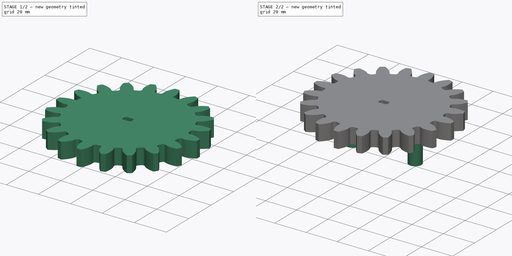
[diagram: build sequence overview — one tinted view per stage of 2, left to right]
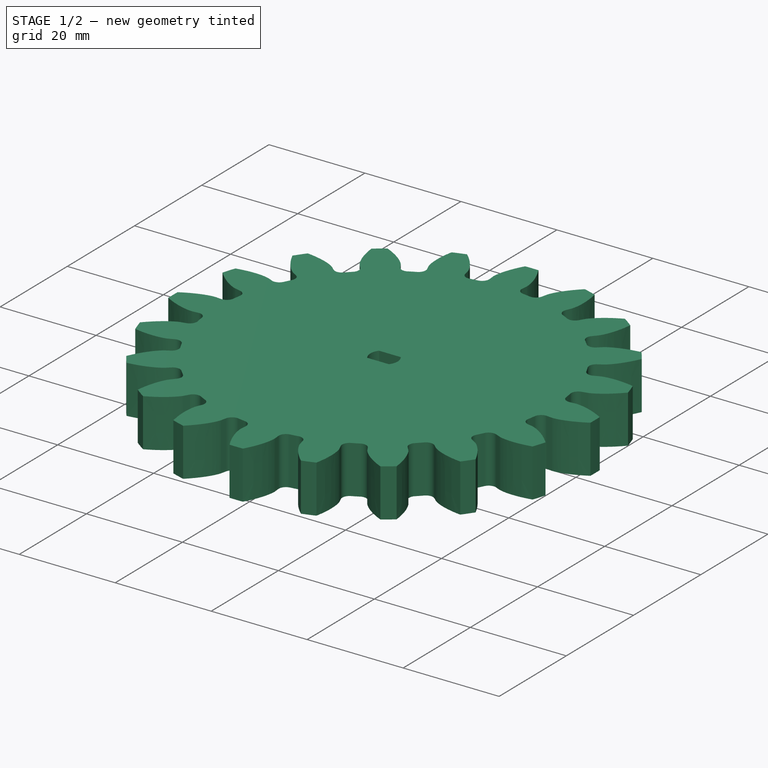
[diagram: stage 1 of 2 — iso view after this stage's code; geometry added in this stage tinted green]
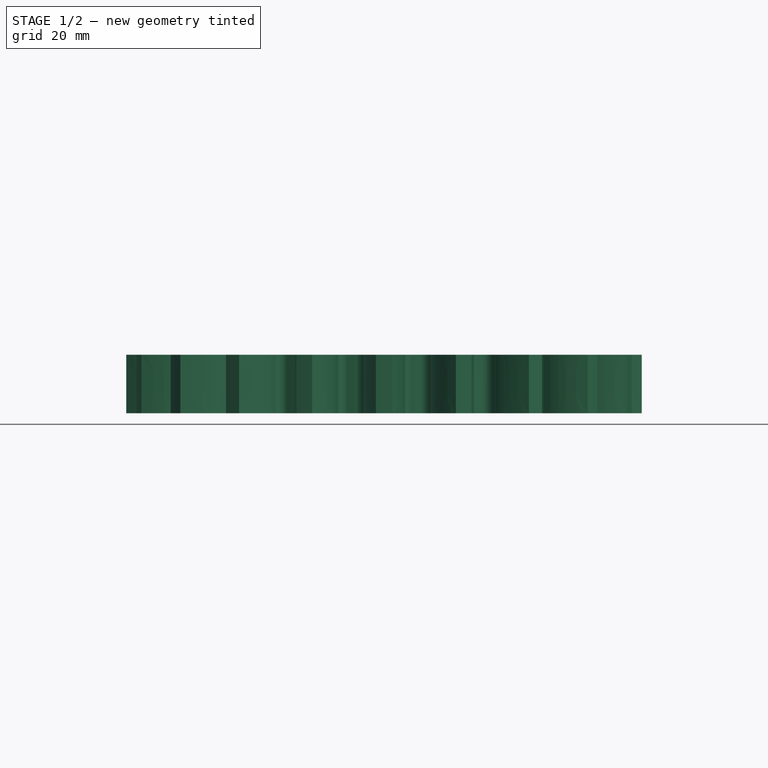
[diagram: stage 1 of 2 — front view after this stage's code; geometry added in this stage tinted green]
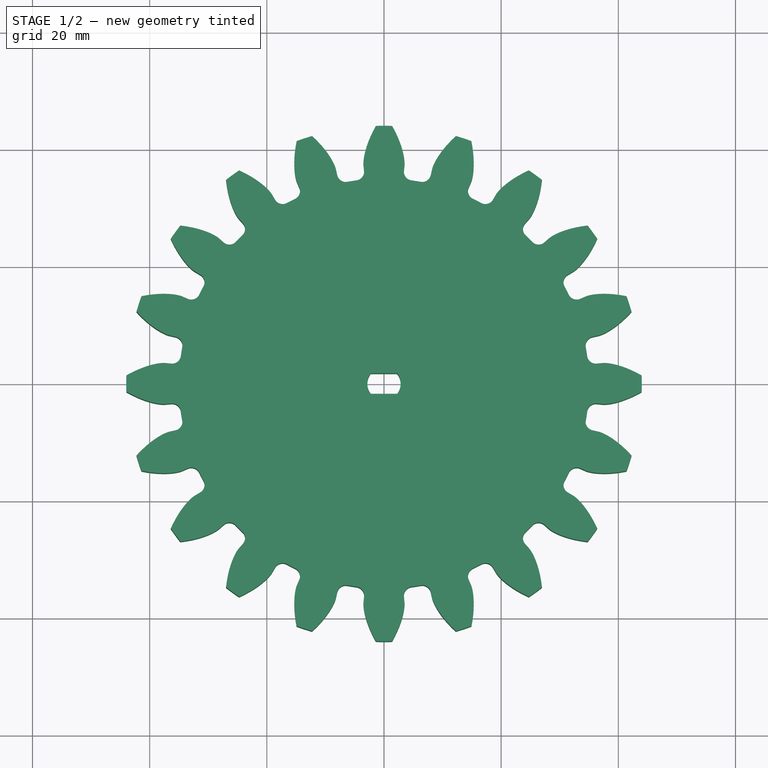
[diagram: stage 1 of 2 — top view after this stage's code; geometry added in this stage tinted green]
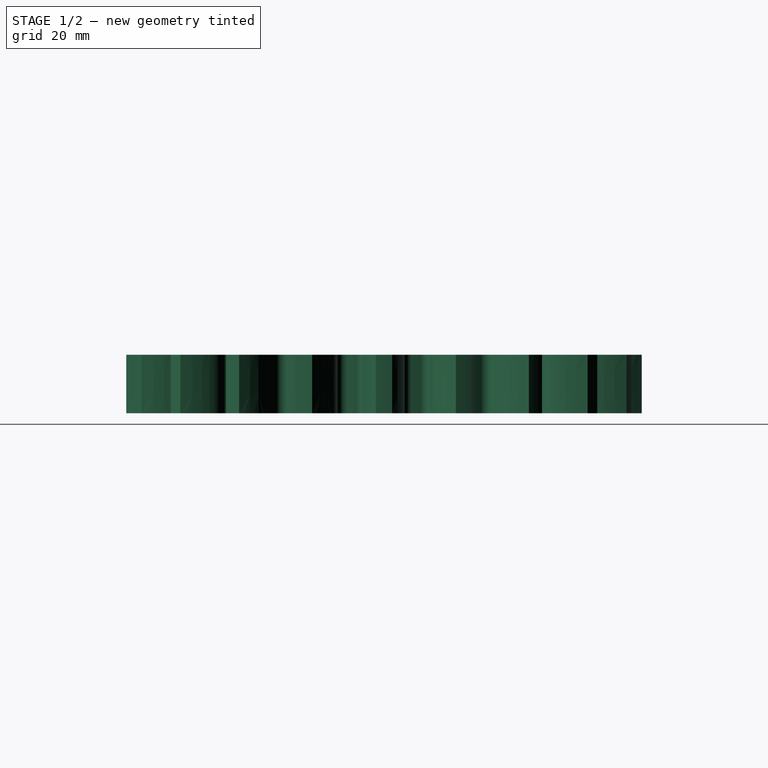
[diagram: stage 1 of 2 — right view after this stage's code; geometry added in this stage tinted green]
FCSTD DOCUMENT  (FreeCAD 0.19R24267 +148 (Git))
Label: Engranaje_1
License: All rights reserved
LicenseURL: http://en.wikipedia.org/wiki/All_rights_reserved
objects: Sketcher::SketchObject×4, PartDesign::Pad×3, Part::Part2DObjectPython×1, PartDesign::Pocket×1, PartDesign::Body×1
note: 14 computed .brp shape members not serialized (recipe doc carries the construction recipe); baked Part::Feature solids carry a one-line shape summary decoded from their .brp

FEATURE [Sketcher::SketchObject] Sketch001  label="Orificio"
  FullyConstrained = true
  MapMode = 5
  Support = -> [XY_Plane]
  sketch-geometry (10):
    g0: LineSegment StartX=-2.25 StartY=1.75 StartZ=0 EndX=2.25 EndY=1.75 EndZ=0
    g1: LineSegment StartX=-2.25 StartY=-1.75 StartZ=0 EndX=2.25 EndY=-1.75 EndZ=0
    g2: GeomPoint X=0 Y=1.75 Z=0
    g3: GeomPoint X=0 Y=-1.75 Z=0
    g4: LineSegment StartX=0 StartY=1.75 StartZ=0 EndX=0 EndY=-1.75 EndZ=0
    g5: GeomPoint X=0 Y=1.75 Z=0
    g6: ArcOfCircle CenterX=0 CenterY=0 CenterZ=0 NormalX=0 NormalY=0 NormalZ=1 AngleXU=0 Radius=2.85044 StartAngle=2.48055 EndAngle=3.80264
    g7: ArcOfCircle CenterX=0 CenterY=0 CenterZ=0 NormalX=0 NormalY=0 NormalZ=1 AngleXU=0 Radius=2.85044 StartAngle=5.62214 EndAngle=6.94423
    g8: GeomPoint X=-2.85044 Y=0 Z=0
    g9: GeomPoint X=-2.85044 Y=0 Z=0
  constraints (26):
    c: Distance(g1,g0) = 3.5
    c: Symmetric(g0,g1,g-1)
    c: Equal(g1,g0)
    c: Symmetric(g0,g0,g-2)
    c: PointOnObject(g2,g0)
    c: Distance(g2,g0) = 2.25
    c: Distance(g2,g0) = 2.25
    c: PointOnObject(g3,g1)
    c: Distance(g3,g1) = 2.25
    c: Coincident(g4,g2)
    c: Coincident(g4,g3)
    c: Vertical(g4)
    c: Distance(g4) = 3.5
    c: Distance(g0) = 4.5
    c: PointOnObject(g5,g-2)
    c: Coincident(g2,g5)
    c: Coincident(g6,g-1)
    c: Coincident(g6,g0)
    c: Coincident(g6,g1)
    c: Coincident(g7,g6)
    c: Coincident(g7,g0)
    c: Coincident(g7,g1)
    c: PointOnObject(g8,g-1)
    c: PointOnObject(g9,g6)
    c: Coincident(g8,g9)
    c: Distance(g8,g6) = 2.85044
FEATURE [Part::Part2DObjectPython] InvoluteGear  # Draft 2D object (typed FeaturePython)
  ExternalGear = true
  HighPrecision = true
  Modules = 4
  NumberOfTeeth = 20
  PressureAngle = 20
FEATURE [Sketcher::SketchObject] Sketch  label="Diametro"
  ExternalGeometry = -> [InvoluteGear]
  FullyConstrained = true
  MapMode = 5
  Support = -> [XY_Plane]
  sketch-geometry (3):
    g0: GeomPoint X=0 Y=44.0044 Z=0
    g1: GeomPoint X=0 Y=44.0044 Z=0
    g2: GeomPoint X=0 Y=-44.0044 Z=0
  constraints (6):
    c: PointOnObject(g0,g-3)
    c: PointOnObject(g1,g-2)
    c: Coincident(g0,g1)
    c: PointOnObject(g2,g-4)
    c: PointOnObject(g2,g-2)
    c: Distance(g0,g2) = 88.0088
FEATURE [Sketcher::SketchObject] Sketch002  label="Gancho_izquierdo"
  FullyConstrained = true
  MapMode = 5
  Support = -> [XY_Plane]
  sketch-geometry (2):
    g0: GeomPoint X=-20 Y=0 Z=0
    g1: Circle CenterX=-20 CenterY=0 CenterZ=0 NormalX=0 NormalY=0 NormalZ=1 AngleXU=0 Radius=4
  constraints (4):
    c: PointOnObject(g0,g-1)
    c: Distance(g-1,g0) = 20
    c: Coincident(g1,g0)
    c: Radius(g1) = 4
FEATURE [Sketcher::SketchObject] Sketch003  label="Gancho_derecho"
  FullyConstrained = true
  MapMode = 5
  Support = -> [XY_Plane]
  sketch-geometry (2):
    g0: GeomPoint X=20 Y=0 Z=0
    g1: Circle CenterX=20 CenterY=0 CenterZ=0 NormalX=0 NormalY=0 NormalZ=1 AngleXU=0 Radius=4
  constraints (4):
    c: PointOnObject(g0,g-1)
    c: Distance(g-1,g0) = 20
    c: Coincident(g1,g0)
    c: Radius(g1) = 4
FEATURE [PartDesign::Pad] Pad
  Direction = (1,1,1)
  Length = 10
  Length2 = 100
  Profile = -> InvoluteGear
  Type = 0
FEATURE [PartDesign::Pocket] Pocket  label="Gancho_izquierdo002"
  BaseFeature = -> Pad
  Length = 10
  Length2 = 100
  Profile = -> Sketch001
  Reversed = true
  Type = 0
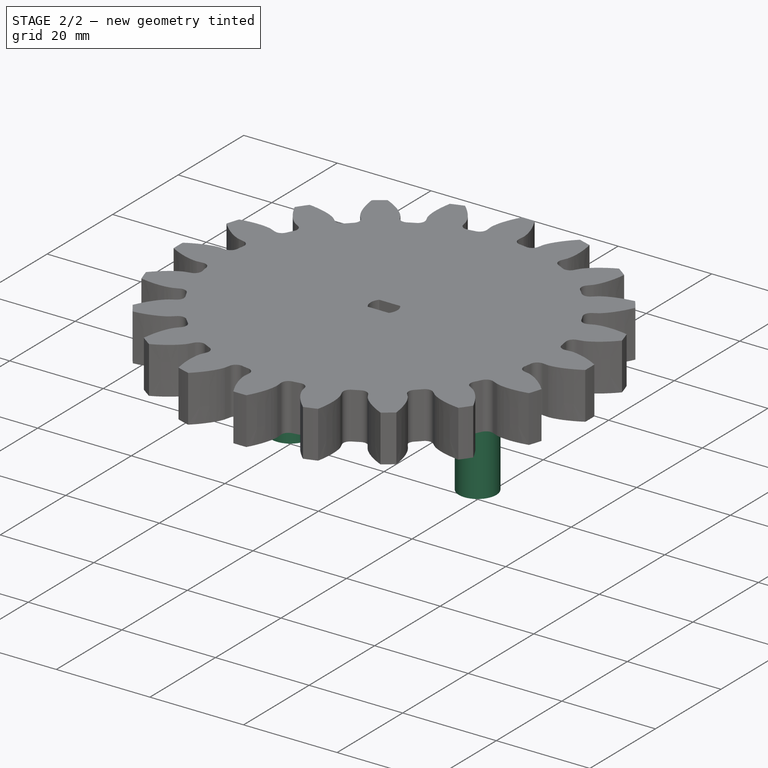
[diagram: stage 2 of 2 — iso view after this stage's code; geometry added in this stage tinted green]
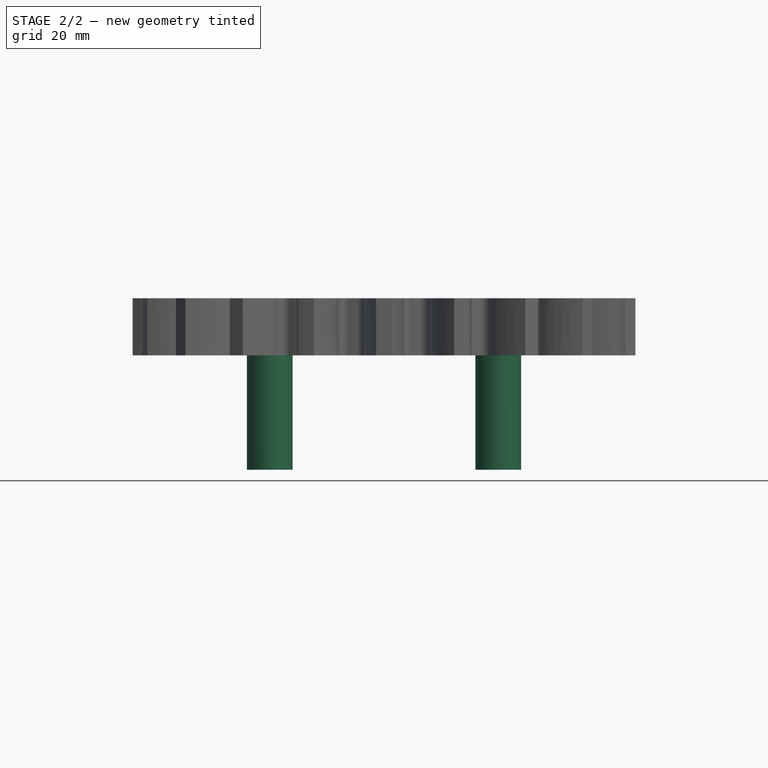
[diagram: stage 2 of 2 — front view after this stage's code; geometry added in this stage tinted green]
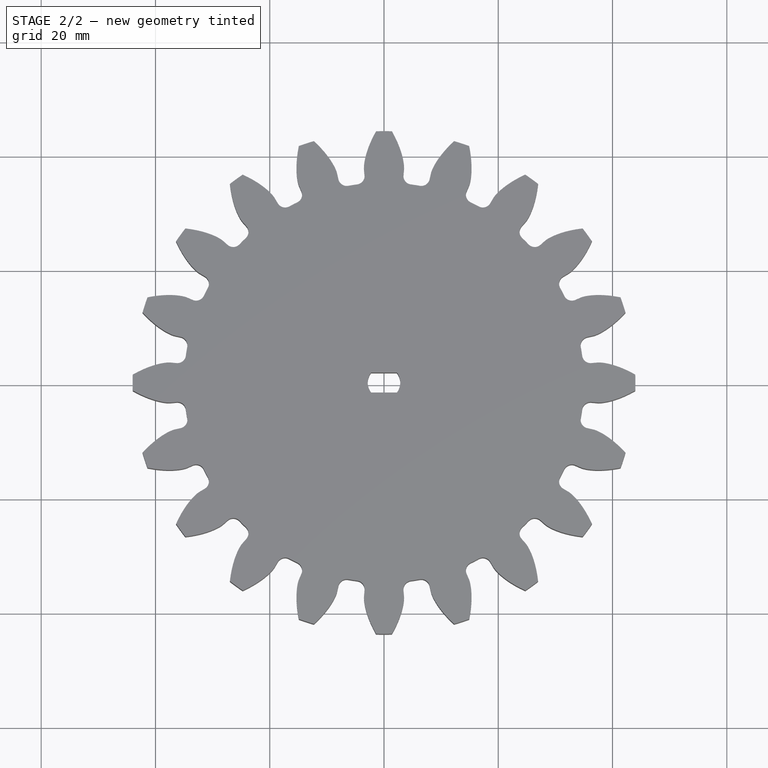
[diagram: stage 2 of 2 — top view after this stage's code; geometry added in this stage tinted green]
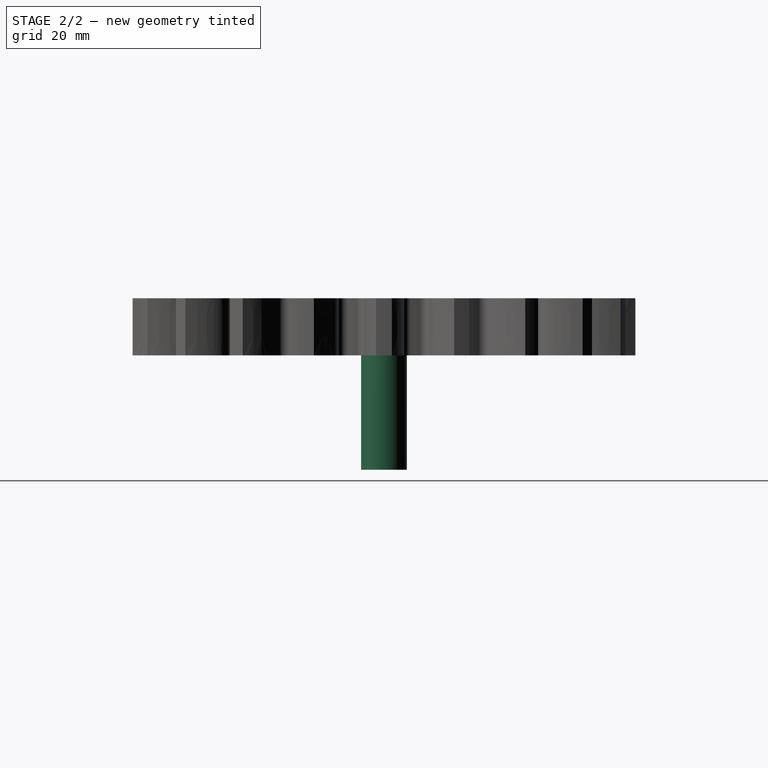
[diagram: stage 2 of 2 — right view after this stage's code; geometry added in this stage tinted green]
FEATURE [PartDesign::Pad] Pad001  label="Gancho_izquierdo001"
  BaseFeature = -> Pocket
  Direction = (1,1,1)
  Length = 20
  Length2 = 100
  Profile = -> Sketch002
  Reversed = true
  Type = 0
FEATURE [PartDesign::Pad] Pad002  label="Gancho_derecho001"
  BaseFeature = -> Pad001
  Direction = (1,1,1)
  Length = 20
  Length2 = 100
  Profile = -> Sketch003
  Reversed = true
  Type = 0
FEATURE [PartDesign::Body] Body
  Group = -> [Sketch001,InvoluteGear,Sketch,Sketch002,Sketch003,Pad,Pocket,Pad001,Pad002]
  Origin = -> Origin
  Tip = -> Pad002
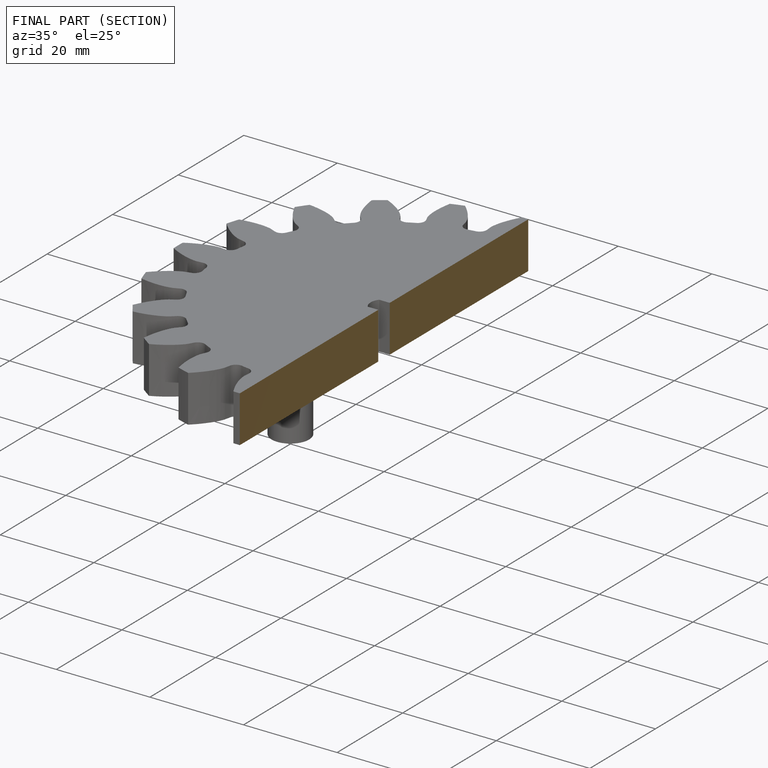
[diagram: finished part — half-section view (interior)]
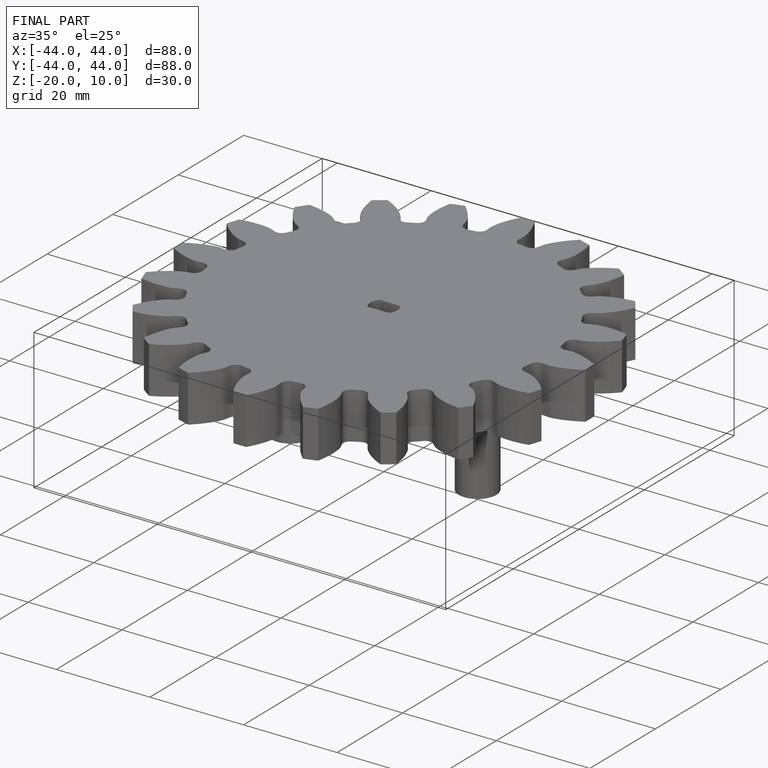
[diagram: finished part — iso view with bounding-box wireframe]
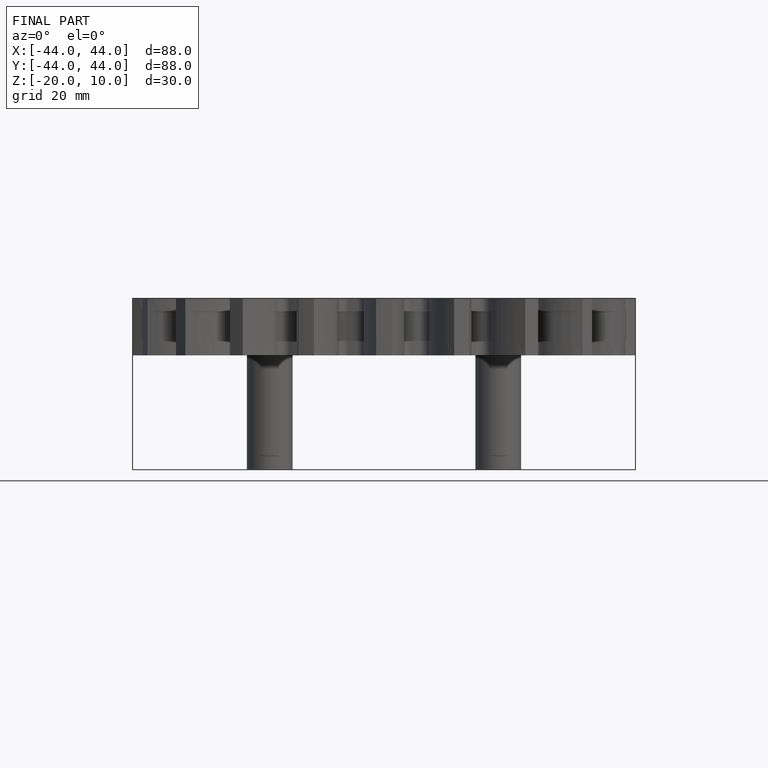
[diagram: finished part — front view with bounding-box wireframe]
